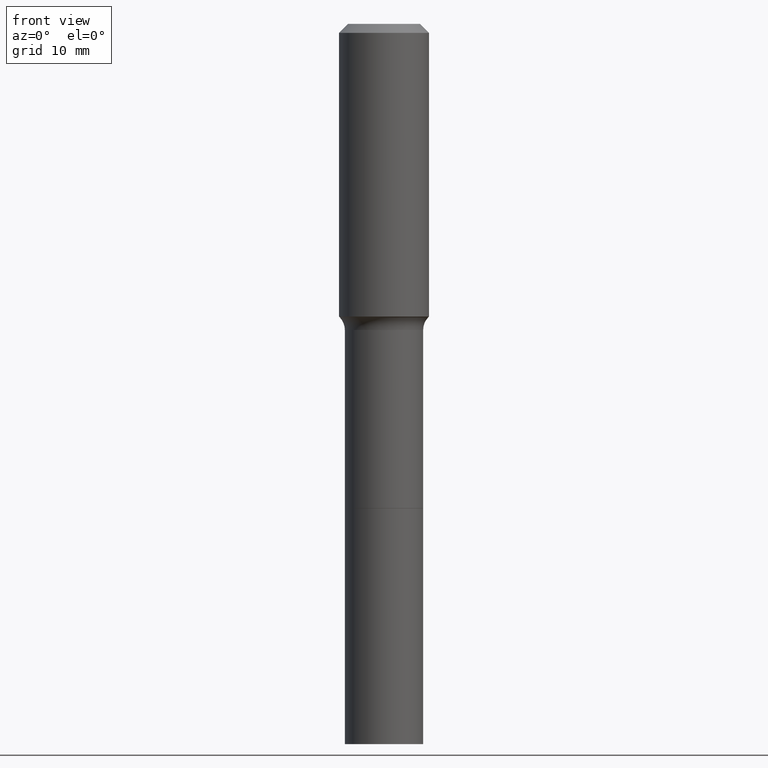
[diagram: clean part render]
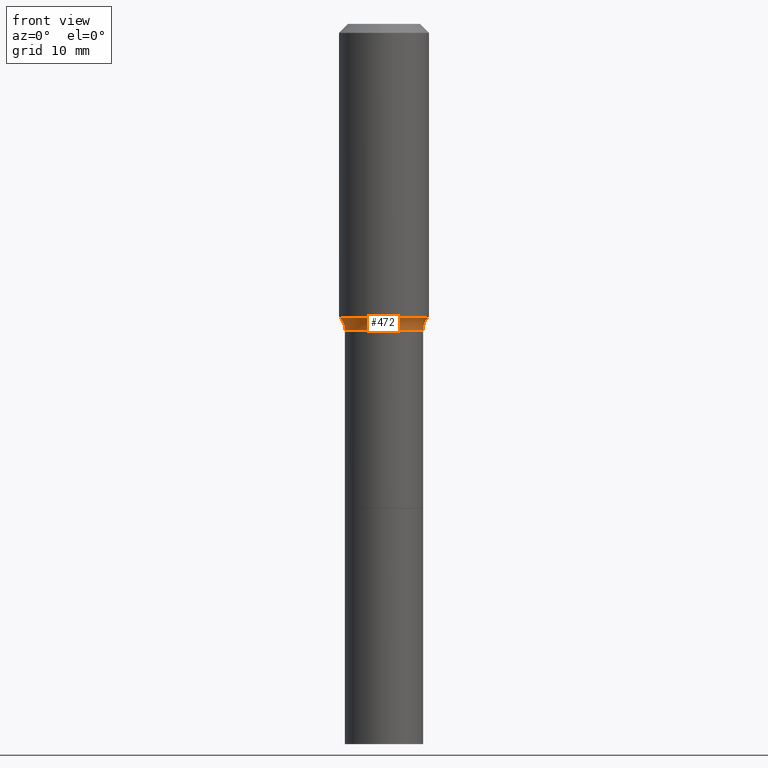
[diagram: same view with one face highlighted and labeled with its STEP entity id]
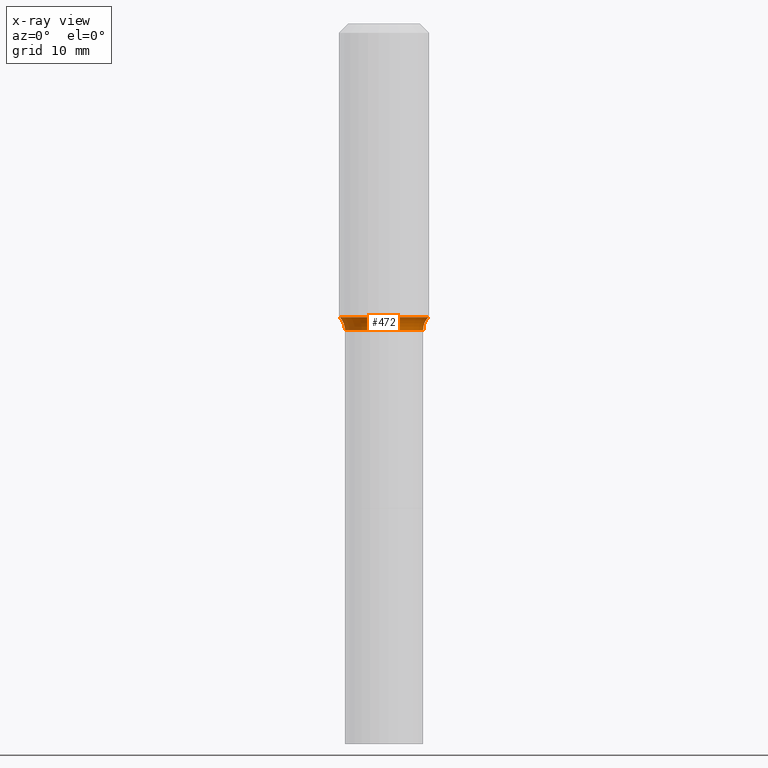
[diagram: x-ray of the same camera — body ghosted, the highlighted face saturated]
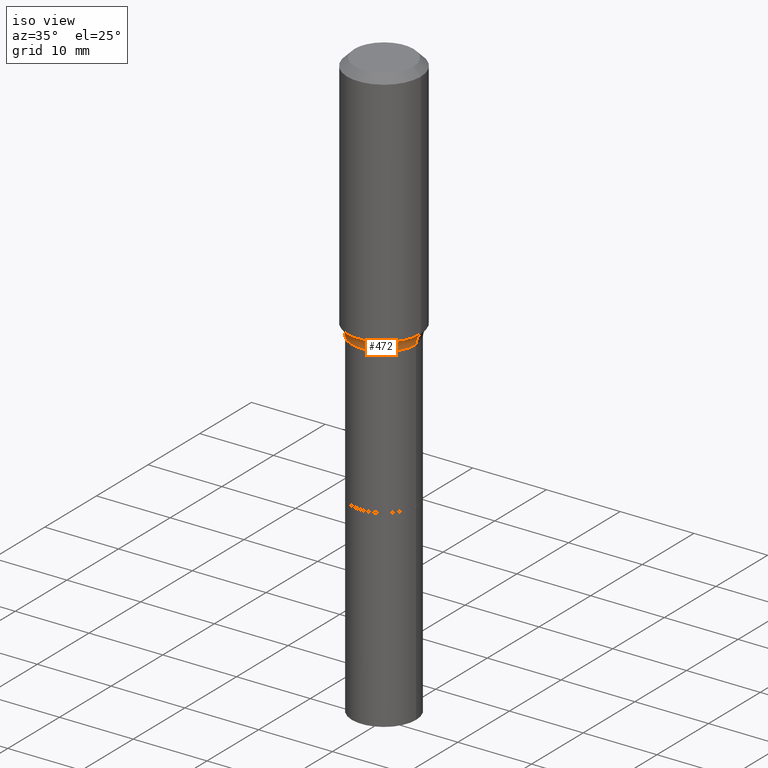
[diagram: same view with one face highlighted and labeled with its STEP entity id]
A machine part, front view. The second image highlights one B-rep face of the part: STEP entity #472.
The next image is the same camera in x-ray: the body ghosted, the highlighted face saturated — about 0% of this face is hidden behind the body in this view.
A second angle (iso view) of the same face is appended — the face is thin or edge-on in the first view.
In plain terms, the highlighted toroidal blend (fillet) surface has major radius 6.3817 mm and minor (blend) radius 2.032 mm.
Its self-contained STEP definition (entity closure, byte-faithful):
#13 = DIRECTION ( 'NONE',  ( -1.000000000000000000, 7.105427357601001859E-15, 0.000000000000000000 ) ) ;
#34 = DIRECTION ( 'NONE',  ( -2.445468806185136597E-29, 3.491481338843145583E-15, 1.000000000000000000 ) ) ;
#37 = CIRCLE ( 'NONE', #146, 0.07999999999999996003 ) ;
#38 = EDGE_LOOP ( 'NONE', ( #228, #310, #397, #43 ) ) ;
#43 = ORIENTED_EDGE ( 'NONE', *, *, #232, .F. ) ;
#50 = DIRECTION ( 'NONE',  ( 1.000000000000000000, -6.982962677686264344E-15, 0.000000000000000000 ) ) ;
#77 = AXIS2_PLACEMENT_3D ( 'NONE', #132, #334, #13 ) ;
#82 = VERTEX_POINT ( 'NONE', #142 ) ;
#132 = CARTESIAN_POINT ( 'NONE',  ( -0.2512499999999999734, -2.888458296578183998E-15, -1.338600000000000234 ) ) ;
#142 = CARTESIAN_POINT ( 'NONE',  ( -0.1927417038704663244, -3.113689980761206518E-15, -1.284040131195000489 ) ) ;
#143 = EDGE_CURVE ( 'NONE', #82, #354, #304, .T. ) ;
#146 = AXIS2_PLACEMENT_3D ( 'NONE', #246, #487, #208 ) ;
#161 = FACE_OUTER_BOUND ( 'NONE', #38, .T. ) ;
#166 = EDGE_CURVE ( 'NONE', #82, #350, #440, .T. ) ;
#187 = CARTESIAN_POINT ( 'NONE',  ( 3.273504543959424474E-29, -4.673696920175435525E-15, -1.338600000000000234 ) ) ;
#189 = DIRECTION ( 'NONE',  ( 1.000000000000000000, -6.982962677686266711E-15, 0.000000000000000000 ) ) ;
#208 = DIRECTION ( 'NONE',  ( 1.000000000000000000, -6.982962677686262766E-15, 0.000000000000000000 ) ) ;
#217 = AXIS2_PLACEMENT_3D ( 'NONE', #332, #455, #50 ) ;
#226 = TOROIDAL_SURFACE ( 'NONE', #513, 0.2512499999999999734, 0.08000000000000000167 ) ;
#228 = ORIENTED_EDGE ( 'NONE', *, *, #166, .F. ) ;
#232 = EDGE_CURVE ( 'NONE', #350, #467, #37, .T. ) ;
#246 = CARTESIAN_POINT ( 'NONE',  ( 0.2512499999999999734, -6.428166292944109721E-15, -1.338600000000000234 ) ) ;
#279 = CIRCLE ( 'NONE', #495, 0.1712499999999999023 ) ;
#280 = CARTESIAN_POINT ( 'NONE',  ( 0.1712499999999999023, -5.869529278729208069E-15, -1.338600000000000234 ) ) ;
#304 = CIRCLE ( 'NONE', #77, 0.07999999999999996003 ) ;
#310 = ORIENTED_EDGE ( 'NONE', *, *, #143, .T. ) ;
#332 = CARTESIAN_POINT ( 'NONE',  ( 3.140080086727243582E-29, -4.483202156393049043E-15, -1.284040131195000489 ) ) ;
#334 = DIRECTION ( 'NONE',  ( 7.105427357601001859E-15, 1.000000000000000000, -3.491481338843145583E-15 ) ) ;
#350 = VERTEX_POINT ( 'NONE', #388 ) ;
#354 = VERTEX_POINT ( 'NONE', #462 ) ;
#388 = CARTESIAN_POINT ( 'NONE',  ( 0.1927417038704663244, -5.829110280954173531E-15, -1.284040131195000489 ) ) ;
#392 = DIRECTION ( 'NONE',  ( 1.000000000000000000, -6.982962677686266711E-15, 4.883557194083112340E-29 ) ) ;
#397 = ORIENTED_EDGE ( 'NONE', *, *, #476, .T. ) ;
#401 = CARTESIAN_POINT ( 'NONE',  ( 3.273504543959424474E-29, -4.673696920175435525E-15, -1.338600000000000234 ) ) ;
#430 = DIRECTION ( 'NONE',  ( -2.445468806185136597E-29, 3.491481338843145583E-15, 1.000000000000000000 ) ) ;
#440 = CIRCLE ( 'NONE', #217, 0.1927417038704663244 ) ;
#455 = DIRECTION ( 'NONE',  ( -2.445468806185136597E-29, 3.491481338843145583E-15, 1.000000000000000000 ) ) ;
#462 = CARTESIAN_POINT ( 'NONE',  ( -0.1712499999999999023, -4.817697337000379931E-15, -1.338600000000000234 ) ) ;
#467 = VERTEX_POINT ( 'NONE', #280 ) ;
#472 = ADVANCED_FACE ( 'NONE', ( #161 ), #226, .F. ) ;
#476 = EDGE_CURVE ( 'NONE', #354, #467, #279, .T. ) ;
#487 = DIRECTION ( 'NONE',  ( -6.982962677686266711E-15, -1.000000000000000000, 3.491481338843145583E-15 ) ) ;
#495 = AXIS2_PLACEMENT_3D ( 'NONE', #401, #34, #189 ) ;
#513 = AXIS2_PLACEMENT_3D ( 'NONE', #187, #430, #392 ) ;